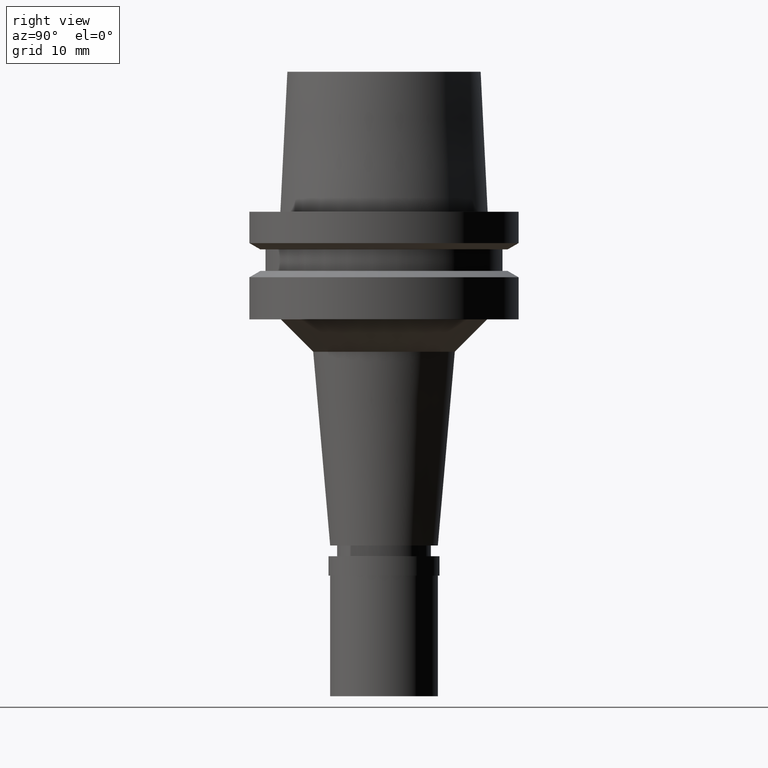
[diagram: clean part render]
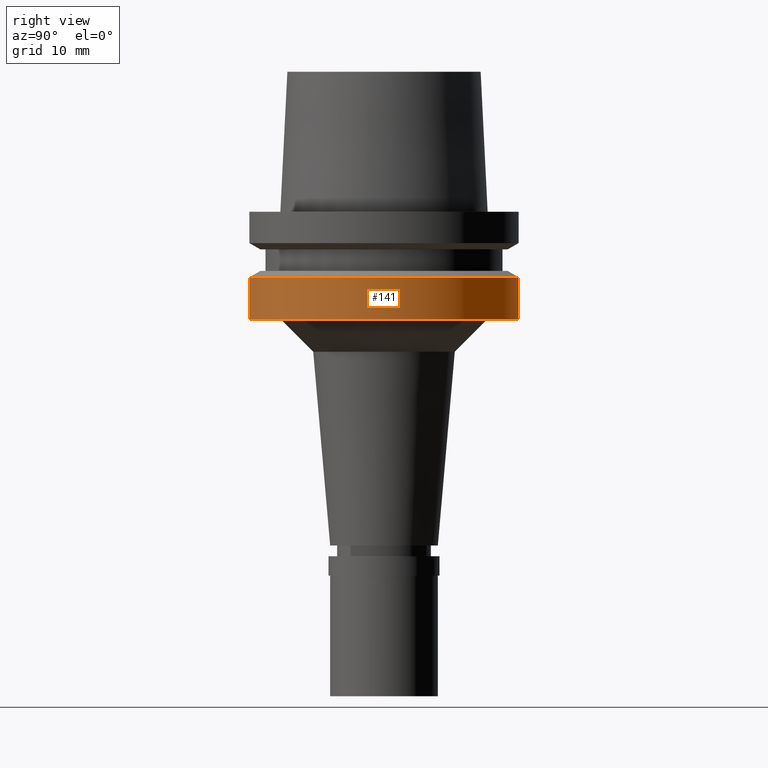
[diagram: same view with one face highlighted and labeled with its STEP entity id]
A machine part, right view. The second image highlights one B-rep face of the part: STEP entity #141.
In plain terms, the highlighted cylindrical surface (partial cylindrical patch) has radius 12.5 mm, axis along (0, 0, 1).
Its self-contained STEP definition (entity closure, byte-faithful):
#10 = CYLINDRICAL_SURFACE ( 'NONE', #1401, 12.50000000000000000 ) ;
#19 = DIRECTION ( 'NONE',  ( 0.0000000000000000000, -1.000000000000000000, 0.0000000000000000000 ) ) ;
#70 = CARTESIAN_POINT ( 'NONE',  ( 0.0000000000000000000, 0.0000000000000000000, -44.01500000000000057 ) ) ;
#141 = ADVANCED_FACE ( 'NONE', ( #1066 ), #10, .T. ) ;
#221 = EDGE_CURVE ( 'NONE', #2102, #2348, #2333, .T. ) ;
#223 = DIRECTION ( 'NONE',  ( 0.0000000000000000000, 1.000000000000000000, 0.0000000000000000000 ) ) ;
#305 = ORIENTED_EDGE ( 'NONE', *, *, #2300, .T. ) ;
#333 = VECTOR ( 'NONE', #1516, 1000.000000000000000 ) ;
#427 = DIRECTION ( 'NONE',  ( 0.0000000000000000000, -1.825263569095999977E-13, -1.000000000000000000 ) ) ;
#790 = CARTESIAN_POINT ( 'NONE',  ( 0.0000000000000000000, 12.50000000000000000, -6.087713240272000448 ) ) ;
#817 = VERTEX_POINT ( 'NONE', #790 ) ;
#893 = ORIENTED_EDGE ( 'NONE', *, *, #2076, .T. ) ;
#916 = EDGE_CURVE ( 'NONE', #817, #2348, #2489, .T. ) ;
#926 = VECTOR ( 'NONE', #427, 1000.000000000000000 ) ;
#945 = DIRECTION ( 'NONE',  ( 0.0000000000000000000, 0.0000000000000000000, -1.000000000000000000 ) ) ;
#974 = VERTEX_POINT ( 'NONE', #2507 ) ;
#1002 = CARTESIAN_POINT ( 'NONE',  ( 0.0000000000000000000, -12.50000000000000000, -10.00000000000000000 ) ) ;
#1066 = FACE_OUTER_BOUND ( 'NONE', #2663, .T. ) ;
#1271 = AXIS2_PLACEMENT_3D ( 'NONE', #2330, #1336, #19 ) ;
#1336 = DIRECTION ( 'NONE',  ( 0.0000000000000000000, 0.0000000000000000000, 1.000000000000000000 ) ) ;
#1401 = AXIS2_PLACEMENT_3D ( 'NONE', #70, #2106, #223 ) ;
#1499 = ORIENTED_EDGE ( 'NONE', *, *, #221, .T. ) ;
#1516 = DIRECTION ( 'NONE',  ( 0.0000000000000000000, 1.825263569095999977E-13, -1.000000000000000000 ) ) ;
#1522 = ORIENTED_EDGE ( 'NONE', *, *, #916, .F. ) ;
#1599 = DIRECTION ( 'NONE',  ( 0.0000000000000000000, 1.000000000000000000, 0.0000000000000000000 ) ) ;
#1714 = CARTESIAN_POINT ( 'NONE',  ( 0.0000000000000000000, 12.50000000000000000, -6.087713240272000448 ) ) ;
#1753 = CARTESIAN_POINT ( 'NONE',  ( 0.0000000000000000000, 12.50000000000000000, -10.00000000000000000 ) ) ;
#1801 = CARTESIAN_POINT ( 'NONE',  ( 0.0000000000000000000, 0.0000000000000000000, -6.087713240272999649 ) ) ;
#2076 = EDGE_CURVE ( 'NONE', #974, #2102, #2579, .T. ) ;
#2102 = VERTEX_POINT ( 'NONE', #1002 ) ;
#2106 = DIRECTION ( 'NONE',  ( 0.0000000000000000000, 0.0000000000000000000, 1.000000000000000000 ) ) ;
#2300 = EDGE_CURVE ( 'NONE', #817, #974, #2654, .T. ) ;
#2330 = CARTESIAN_POINT ( 'NONE',  ( 0.0000000000000000000, 0.0000000000000000000, -10.00000000000000000 ) ) ;
#2333 = CIRCLE ( 'NONE', #1271, 12.50000000000000000 ) ;
#2348 = VERTEX_POINT ( 'NONE', #1753 ) ;
#2382 = AXIS2_PLACEMENT_3D ( 'NONE', #1801, #945, #1599 ) ;
#2489 = LINE ( 'NONE', #1714, #333 ) ;
#2507 = CARTESIAN_POINT ( 'NONE',  ( 0.0000000000000000000, -12.50000000000000000, -6.087713240272000448 ) ) ;
#2579 = LINE ( 'NONE', #2593, #926 ) ;
#2593 = CARTESIAN_POINT ( 'NONE',  ( 0.0000000000000000000, -12.50000000000000000, -6.087713240272000448 ) ) ;
#2654 = CIRCLE ( 'NONE', #2382, 12.50000000000000000 ) ;
#2663 = EDGE_LOOP ( 'NONE', ( #305, #893, #1499, #1522 ) ) ;